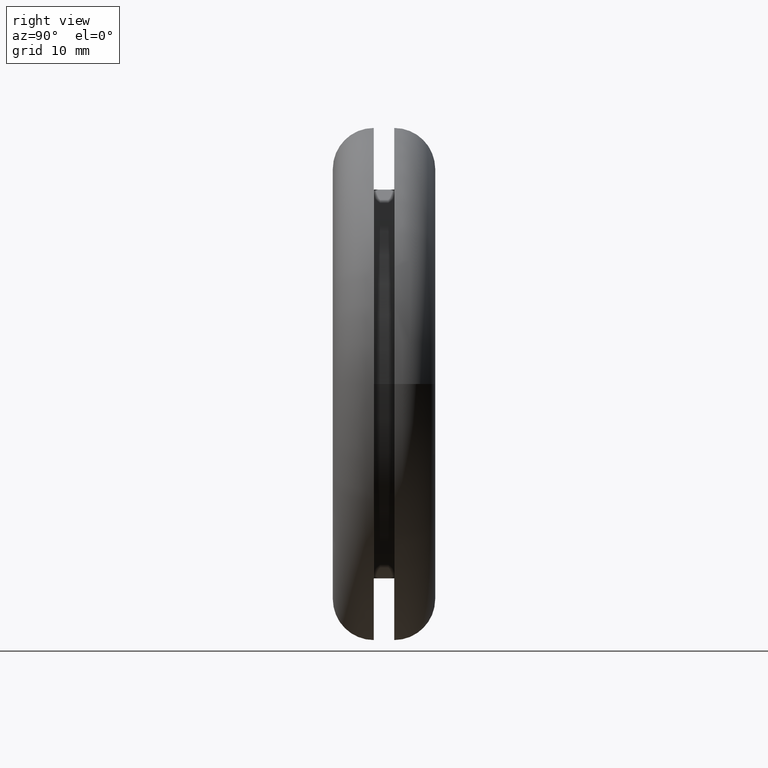
[diagram: clean part render]
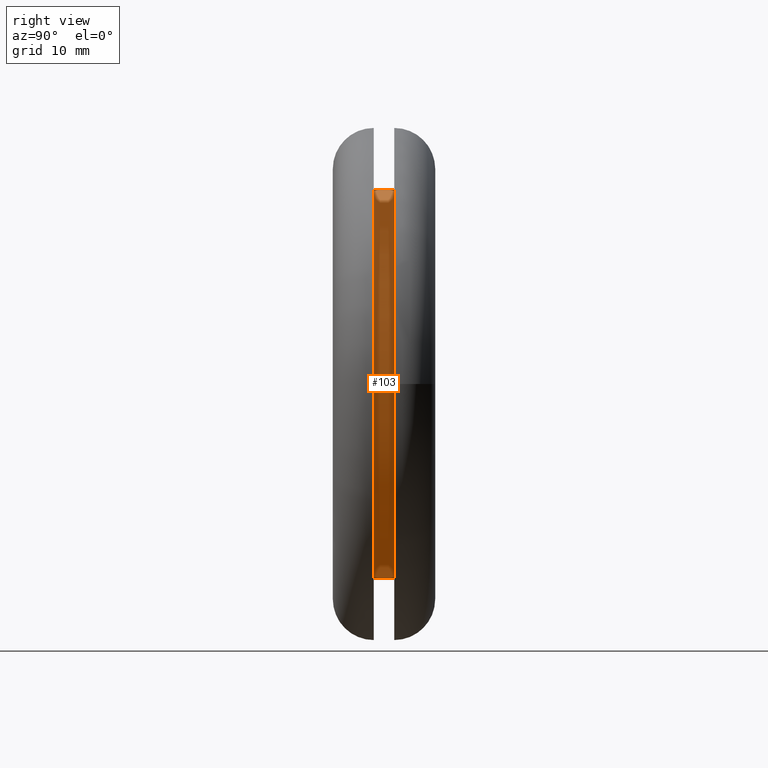
[diagram: same view with one face highlighted and labeled with its STEP entity id]
A machine part, right view. The second image highlights one B-rep face of the part: STEP entity #103.
In plain terms, the highlighted cylindrical surface (bore or boss wall) has radius 19 mm, axis along (0, 1, 0).
Its self-contained STEP definition (entity closure, byte-faithful):
#27=FACE_BOUND('',#51,.T.);
#36=FACE_OUTER_BOUND('',#50,.T.);
#50=EDGE_LOOP('',(#90));
#51=EDGE_LOOP('',(#91));
#60=CIRCLE('',#120,19.);
#61=CIRCLE('',#122,19.);
#68=VERTEX_POINT('',#180);
#69=VERTEX_POINT('',#183);
#76=EDGE_CURVE('',#68,#68,#60,.T.);
#77=EDGE_CURVE('',#69,#69,#61,.T.);
#90=ORIENTED_EDGE('',*,*,#76,.F.);
#91=ORIENTED_EDGE('',*,*,#77,.F.);
#95=CYLINDRICAL_SURFACE('',#121,19.);
#103=ADVANCED_FACE('',(#36,#27),#95,.T.);
#120=AXIS2_PLACEMENT_3D('',#181,#152,#153);
#121=AXIS2_PLACEMENT_3D('',#182,#154,#155);
#122=AXIS2_PLACEMENT_3D('',#184,#156,#157);
#152=DIRECTION('center_axis',(0.,1.,0.));
#153=DIRECTION('ref_axis',(1.,0.,0.));
#154=DIRECTION('center_axis',(0.,1.,0.));
#155=DIRECTION('ref_axis',(1.,0.,0.));
#156=DIRECTION('center_axis',(0.,-1.,0.));
#157=DIRECTION('ref_axis',(1.,0.,0.));
#180=CARTESIAN_POINT('',(19.,6.,0.));
#181=CARTESIAN_POINT('Origin',(0.,6.,0.));
#182=CARTESIAN_POINT('Origin',(0.,4.,0.));
#183=CARTESIAN_POINT('',(19.,4.,0.));
#184=CARTESIAN_POINT('Origin',(0.,4.,0.));